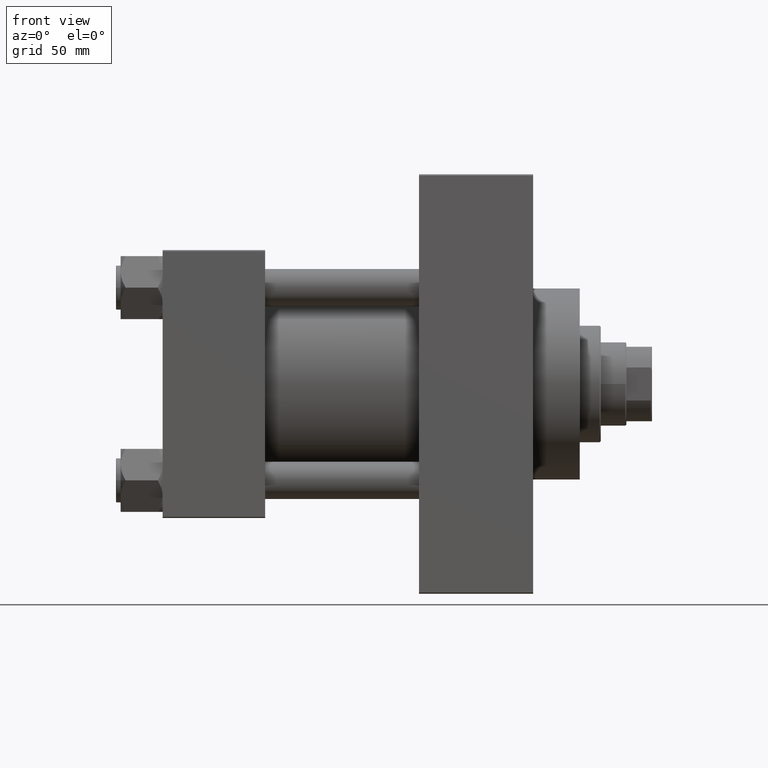
[diagram: clean part render]
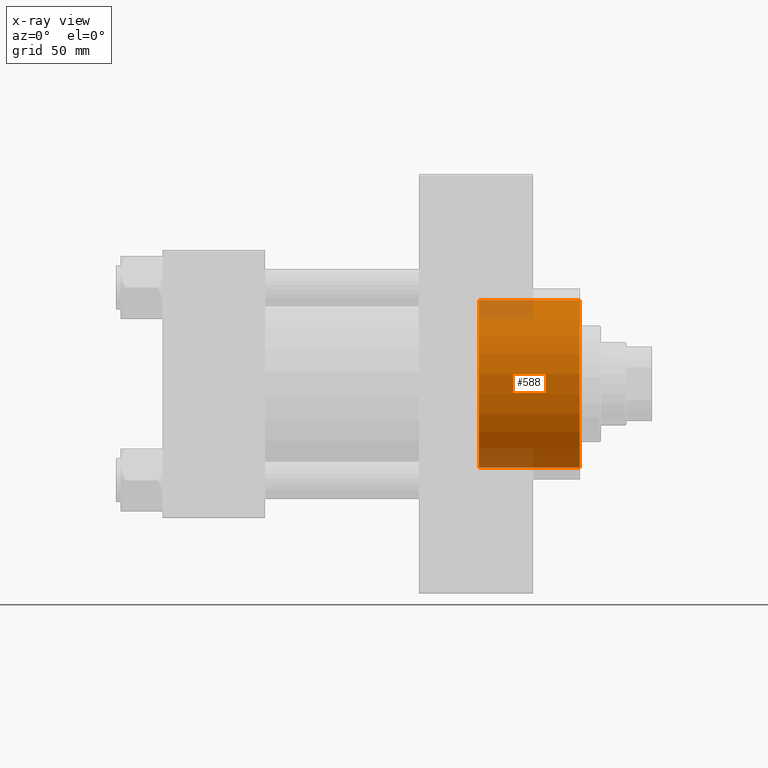
[diagram: x-ray — body ghosted, one internal face saturated and labeled with its STEP entity id]
A machine part, front view, then the same camera in x-ray: the body is ghosted and one INTERNAL B-rep face — a face not visible from any outside direction — is saturated and labeled: STEP entity #588.
In plain terms, the highlighted cylindrical surface (partial cylindrical patch) has radius 36 mm, axis along (1, 0, 0).
Its self-contained STEP definition (entity closure, byte-faithful):
#588 = ADVANCED_FACE ( 'NONE', ( #8325 ), #30290, .F. ) ;
#1850 = ORIENTED_EDGE ( 'NONE', *, *, #31009, .T. ) ;
#2492 = AXIS2_PLACEMENT_3D ( 'NONE', #15444, #15676, #8655 ) ;
#4664 = AXIS2_PLACEMENT_3D ( 'NONE', #31002, #30529, #41607 ) ;
#8194 = CARTESIAN_POINT ( 'NONE',  ( 135.7400000000000091, 4.408728476930470856E-15, 36.00000000000000000 ) ) ;
#8325 = FACE_OUTER_BOUND ( 'NONE', #23196, .T. ) ;
#8655 = DIRECTION ( 'NONE',  ( 0.000000000000000000, 0.000000000000000000, -1.000000000000000000 ) ) ;
#10809 = CARTESIAN_POINT ( 'NONE',  ( 179.0000000000000000, 0.000000000000000000, -36.00000000000000000 ) ) ;
#13096 = EDGE_CURVE ( 'NONE', #37680, #18861, #21509, .T. ) ;
#15444 = CARTESIAN_POINT ( 'NONE',  ( 179.0000000000000000, 0.000000000000000000, 0.000000000000000000 ) ) ;
#15676 = DIRECTION ( 'NONE',  ( 1.000000000000000000, 0.000000000000000000, 0.000000000000000000 ) ) ;
#16363 = CIRCLE ( 'NONE', #2492, 36.00000000000000000 ) ;
#17330 = DIRECTION ( 'NONE',  ( 1.000000000000000000, -0.000000000000000000, -0.000000000000000000 ) ) ;
#17339 = ORIENTED_EDGE ( 'NONE', *, *, #25887, .T. ) ;
#18586 = ORIENTED_EDGE ( 'NONE', *, *, #13096, .F. ) ;
#18861 = VERTEX_POINT ( 'NONE', #41027 ) ;
#19198 = AXIS2_PLACEMENT_3D ( 'NONE', #29182, #40501, #29665 ) ;
#19287 = LINE ( 'NONE', #8194, #47312 ) ;
#21509 = CIRCLE ( 'NONE', #19198, 36.00000000000000000 ) ;
#23196 = EDGE_LOOP ( 'NONE', ( #18586, #17339, #1850, #45817 ) ) ;
#25589 = CARTESIAN_POINT ( 'NONE',  ( 179.0000000000000000, 4.408728476930470856E-15, 36.00000000000000000 ) ) ;
#25821 = VERTEX_POINT ( 'NONE', #25589 ) ;
#25887 = EDGE_CURVE ( 'NONE', #37680, #25821, #19287, .T. ) ;
#26074 = DIRECTION ( 'NONE',  ( 1.000000000000000000, -0.000000000000000000, -0.000000000000000000 ) ) ;
#27123 = VECTOR ( 'NONE', #17330, 1000.000000000000000 ) ;
#27978 = VERTEX_POINT ( 'NONE', #10809 ) ;
#28544 = CARTESIAN_POINT ( 'NONE',  ( 135.7400000000000091, 4.408728476930470856E-15, 36.00000000000000000 ) ) ;
#29182 = CARTESIAN_POINT ( 'NONE',  ( 135.7400000000000091, 0.000000000000000000, 0.000000000000000000 ) ) ;
#29665 = DIRECTION ( 'NONE',  ( 0.000000000000000000, 0.000000000000000000, -1.000000000000000000 ) ) ;
#30290 = CYLINDRICAL_SURFACE ( 'NONE', #4664, 36.00000000000000000 ) ;
#30529 = DIRECTION ( 'NONE',  ( 1.000000000000000000, -0.000000000000000000, -0.000000000000000000 ) ) ;
#31002 = CARTESIAN_POINT ( 'NONE',  ( 135.7400000000000091, 0.000000000000000000, 0.000000000000000000 ) ) ;
#31009 = EDGE_CURVE ( 'NONE', #25821, #27978, #16363, .T. ) ;
#31072 = EDGE_CURVE ( 'NONE', #18861, #27978, #46267, .T. ) ;
#37680 = VERTEX_POINT ( 'NONE', #28544 ) ;
#40501 = DIRECTION ( 'NONE',  ( 1.000000000000000000, 0.000000000000000000, 0.000000000000000000 ) ) ;
#41027 = CARTESIAN_POINT ( 'NONE',  ( 135.7400000000000091, 0.000000000000000000, -36.00000000000000000 ) ) ;
#41607 = DIRECTION ( 'NONE',  ( 0.000000000000000000, 0.000000000000000000, -1.000000000000000000 ) ) ;
#42658 = CARTESIAN_POINT ( 'NONE',  ( 135.7400000000000091, 0.000000000000000000, -36.00000000000000000 ) ) ;
#45817 = ORIENTED_EDGE ( 'NONE', *, *, #31072, .F. ) ;
#46267 = LINE ( 'NONE', #42658, #27123 ) ;
#47312 = VECTOR ( 'NONE', #26074, 1000.000000000000000 ) ;